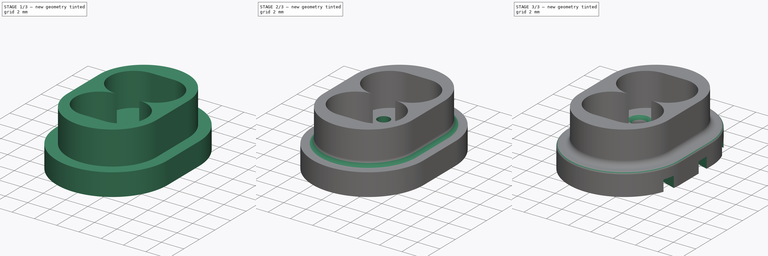
[diagram: build sequence overview — one tinted view per stage of 3, left to right]
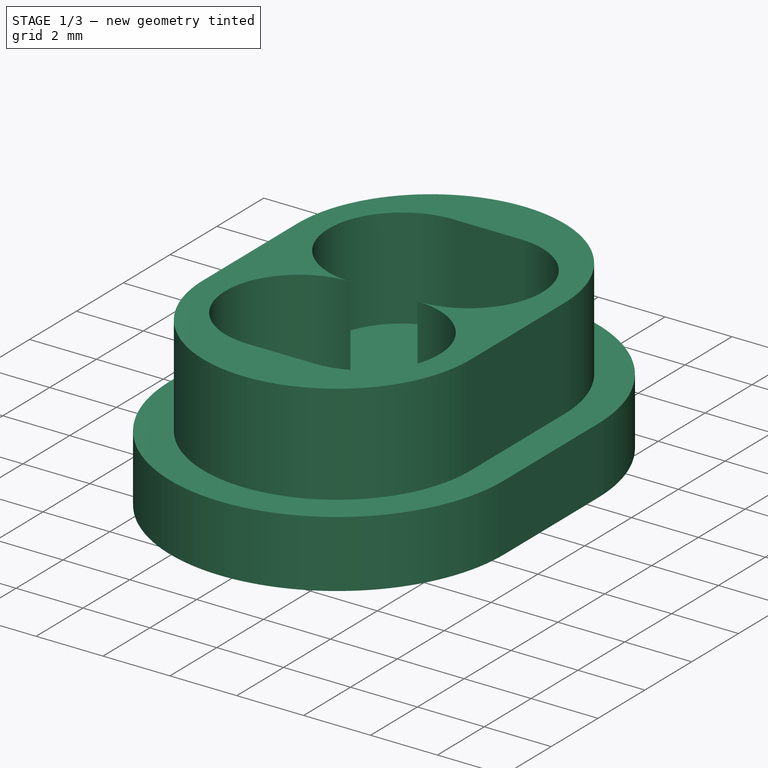
[diagram: stage 1 of 3 — iso view after this stage's code; geometry added in this stage tinted green]
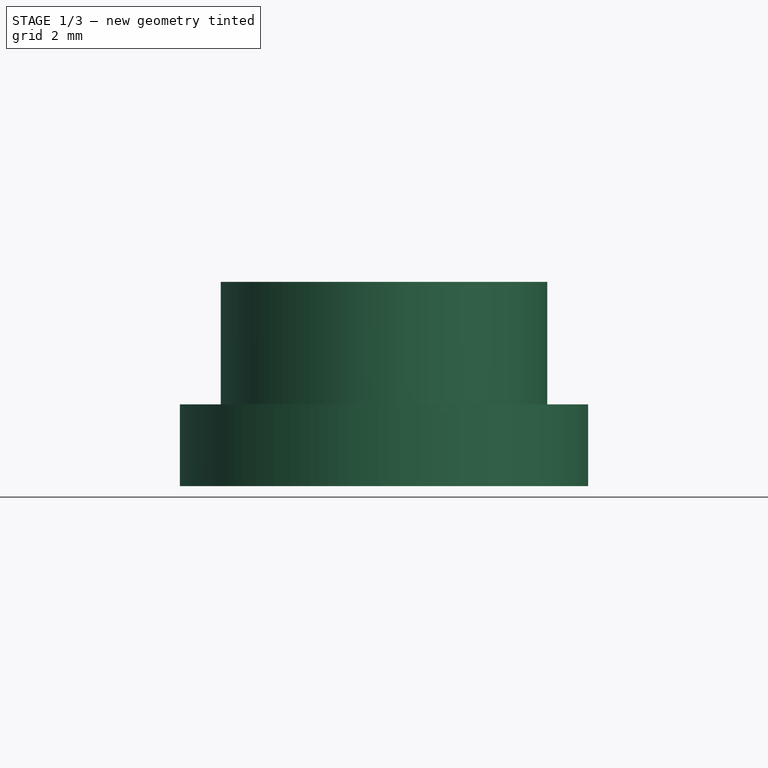
[diagram: stage 1 of 3 — front view after this stage's code; geometry added in this stage tinted green]
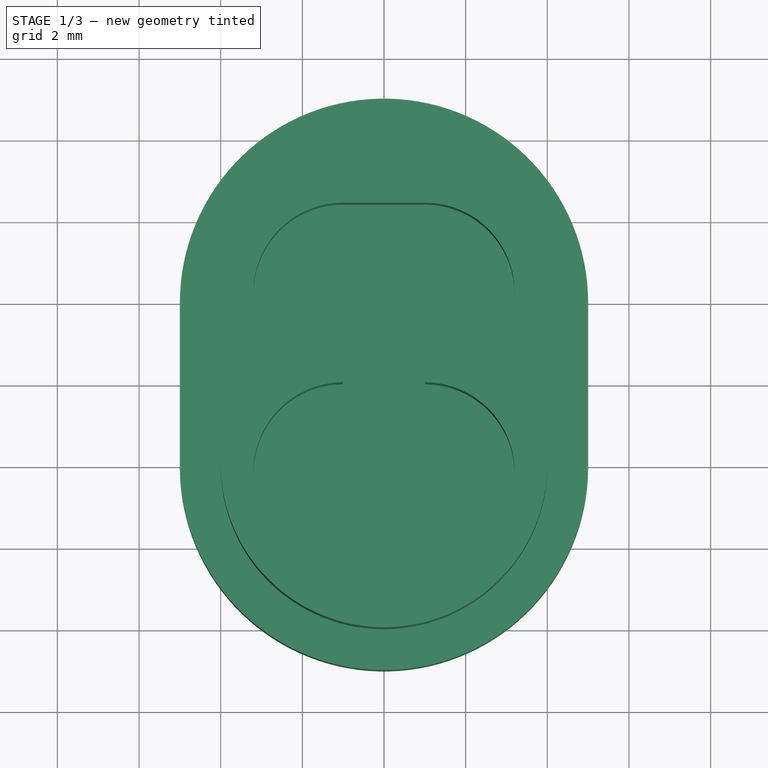
[diagram: stage 1 of 3 — top view after this stage's code; geometry added in this stage tinted green]
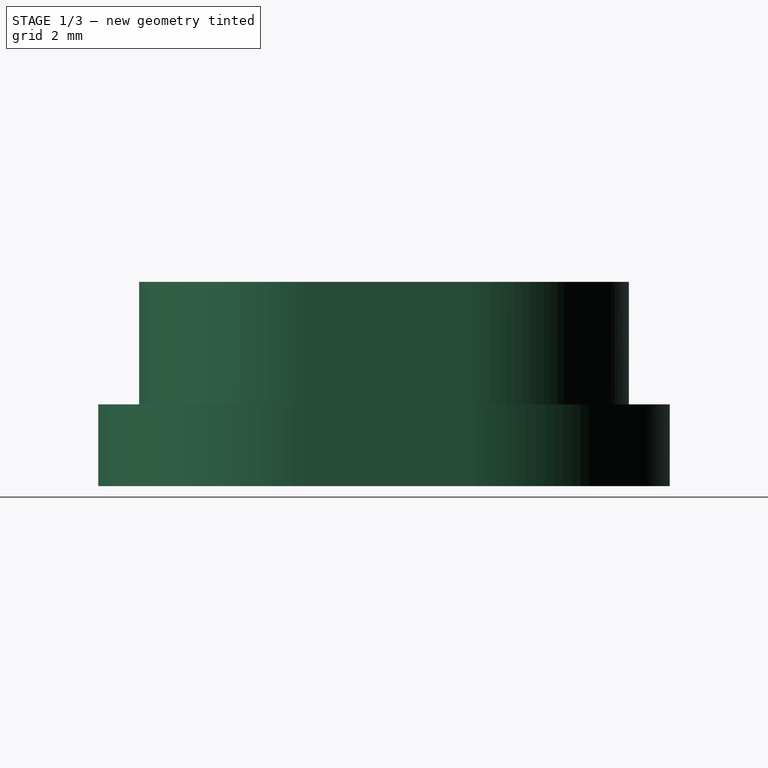
[diagram: stage 1 of 3 — right view after this stage's code; geometry added in this stage tinted green]
FCSTD DOCUMENT  (FreeCAD 0.21R33694 (Git))
Label: Bouchon x2 LDR V5
License: All rights reserved
LicenseURL: http://en.wikipedia.org/wiki/All_rights_reserved
objects: Sketcher::SketchObject×5, PartDesign::Pocket×3, PartDesign::Fillet×3, PartDesign::Pad×2, PartDesign::Body×1
note: 22 computed .brp shape members not serialized (recipe doc carries the construction recipe); baked Part::Feature solids carry a one-line shape summary decoded from their .brp

FEATURE [Sketcher::SketchObject] Sketch
  FullyConstrained = true
  MapMode = 5
  Support = -> [XY_Plane]
  sketch-geometry (4):
    g0: ArcOfCircle CenterX=-2e-16 CenterY=2 CenterZ=0 NormalX=0 NormalY=0 NormalZ=1 AngleXU=0 Radius=5 StartAngle=0 EndAngle=3.14159
    g1: ArcOfCircle CenterX=2e-16 CenterY=-2 CenterZ=0 NormalX=0 NormalY=0 NormalZ=1 AngleXU=0 Radius=5 StartAngle=3.14159 EndAngle=6.28319
    g2: LineSegment StartX=-5 StartY=2 StartZ=0 EndX=-5 EndY=-2 EndZ=0
    g3: LineSegment StartX=5 StartY=-2 StartZ=0 EndX=5 EndY=2 EndZ=0
  constraints (9):
    c: Tangent(g0,g2) = -1.5708
    c: Tangent(g2,g1) = -1.5708
    c: Tangent(g1,g3) = -1.5708
    c: Tangent(g3,g0) = -1.5708
    c: Equal(g0,g1)
    c: Vertical(g2)
    c: Diameter(g1) = 10
    c: Symmetric(g0,g1,g-1)
    c: DistanceY(g3,g3) = 4
FEATURE [PartDesign::Pad] Pad  label="fond"
  AllowMultiFace = false
  Direction = (0,0,1)
  Length = 2
  Length2 = 100
  Profile = -> Sketch
  ReferenceAxis = -> Sketch [N_Axis]
  Type = 0
FEATURE [Sketcher::SketchObject] Sketch001
  FullyConstrained = true
  MapMode = 5
  Placement = pos=(0,0,2) rot=(0,0,1;0rad)
  Support = -> [Pad]
  sketch-geometry (4):
    g0: ArcOfCircle CenterX=0 CenterY=2 CenterZ=0 NormalX=0 NormalY=0 NormalZ=1 AngleXU=0 Radius=4 StartAngle=1e-16 EndAngle=3.14159
    g1: ArcOfCircle CenterX=0 CenterY=-2 CenterZ=0 NormalX=0 NormalY=0 NormalZ=1 AngleXU=0 Radius=4 StartAngle=3.14159 EndAngle=6.28319
    g2: LineSegment StartX=-4 StartY=2 StartZ=0 EndX=-4 EndY=-2 EndZ=0
    g3: LineSegment StartX=4 StartY=-2 StartZ=0 EndX=4 EndY=2 EndZ=0
  constraints (9):
    c: Tangent(g0,g2) = -1.5708
    c: Tangent(g2,g1) = -1.5708
    c: Tangent(g1,g3) = -1.5708
    c: Tangent(g3,g0) = -1.5708
    c: Equal(g0,g1)
    c: PointOnObject(g0,g-2)
    c: Diameter(g0) = 8
    c: DistanceY(g3,g3) = 4
    c: Symmetric(g0,g1,g-1)
FEATURE [PartDesign::Pad] Pad001  label="Eplacement LDR"
  BaseFeature = -> Pad
  Direction = (0,0,1)
  Length = 3
  Length2 = 10
  Profile = -> Sketch001
  ReferenceAxis = -> Sketch001 [N_Axis]
  Refine = true
  Type = 0
FEATURE [Sketcher::SketchObject] Sketch002
  FullyConstrained = false
  MapMode = 5
  Placement = pos=(0,0,5) rot=(0,0,1;0rad)
  Support = -> [Pad001]
  sketch-geometry (6):
    g0: ArcOfCircle CenterX=-1 CenterY=2.2 CenterZ=0 NormalX=0 NormalY=0 NormalZ=1 AngleXU=0 Radius=2.2 StartAngle=1.5708 EndAngle=4.71239
    g1: ArcOfCircle CenterX=1 CenterY=2.2 CenterZ=0 NormalX=0 NormalY=0 NormalZ=1 AngleXU=0 Radius=2.2 StartAngle=4.71239 EndAngle=7.85398
    g2: LineSegment StartX=1 StartY=4.4 StartZ=0 EndX=-1 EndY=4.4 EndZ=0
    g3: ArcOfCircle CenterX=-1 CenterY=-2.2 CenterZ=0 NormalX=0 NormalY=0 NormalZ=1 AngleXU=0 Radius=2.2 StartAngle=1.5708 EndAngle=4.71239
    g4: ArcOfCircle CenterX=1 CenterY=-2.2 CenterZ=0 NormalX=0 NormalY=0 NormalZ=1 AngleXU=0 Radius=2.2 StartAngle=4.71239 EndAngle=7.85398
    g5: LineSegment StartX=-1 StartY=-4.4 StartZ=0 EndX=1 EndY=-4.4 EndZ=0
  constraints (12):
    c: Tangent(g1,g2) = -1.5708
    c: Tangent(g2,g0) = -1.5708
    c: Equal(g0,g1)
    c: Tangent(g3,g5) = -1.5708
    c: Tangent(g5,g4) = -1.5708
    c: Equal(g3,g4)
    c: Equal(g0,g3)
    c: Diameter(g0) = 4.4
    c: DistanceX(g2,g2) = 2
    c: DistanceX(g5,g5) = 2
    c: Symmetric(g1,g0,g-2)
    c: Symmetric(g4,g3,g-2)
FEATURE [PartDesign::Pocket] Pocket  label="LDR"
  BaseFeature = -> Pad001
  Direction = (0,0,-1)
  Length = 3
  Length2 = 5
  Profile = -> Sketch002
  ReferenceAxis = -> Sketch002 [N_Axis]
  Refine = true
  Type = 0
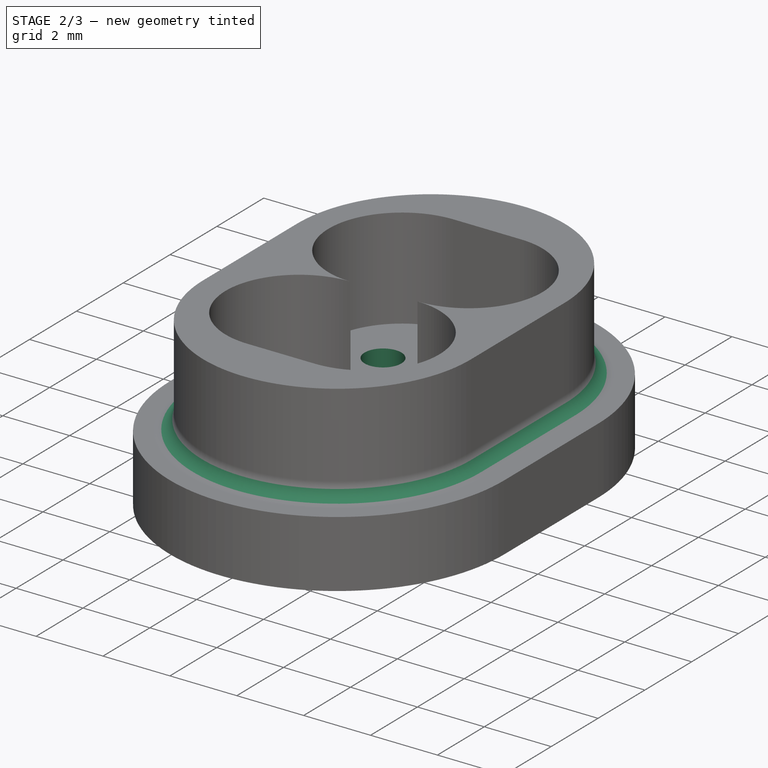
[diagram: stage 2 of 3 — iso view after this stage's code; geometry added in this stage tinted green]
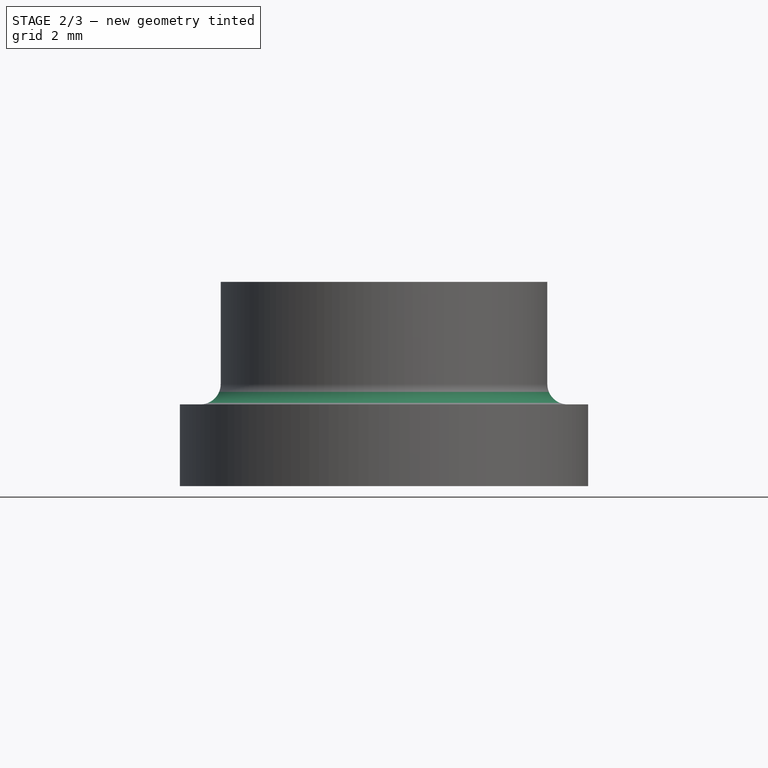
[diagram: stage 2 of 3 — front view after this stage's code; geometry added in this stage tinted green]
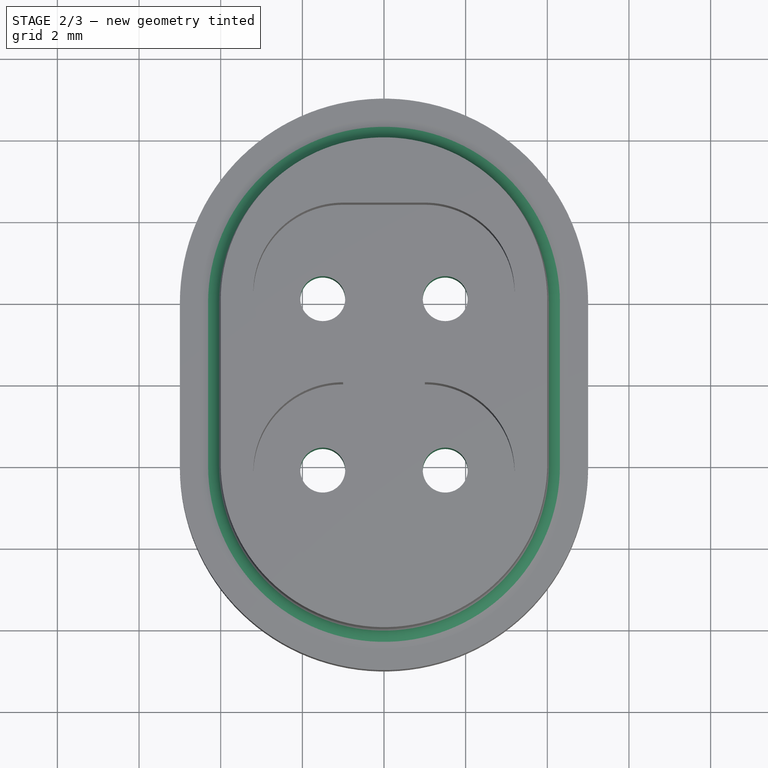
[diagram: stage 2 of 3 — top view after this stage's code; geometry added in this stage tinted green]
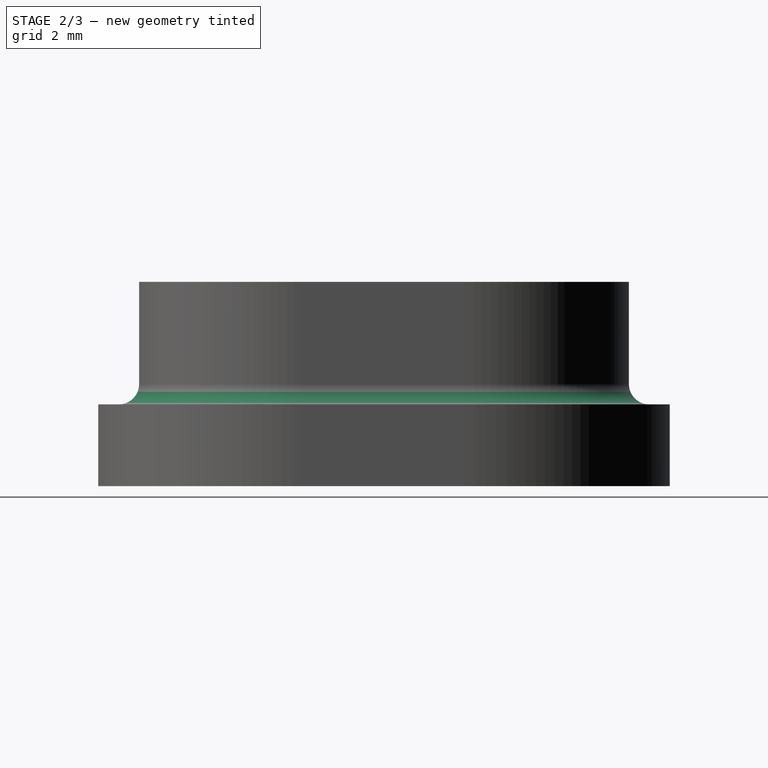
[diagram: stage 2 of 3 — right view after this stage's code; geometry added in this stage tinted green]
FEATURE [Sketcher::SketchObject] Sketch003
  FullyConstrained = true
  MapMode = 5
  Placement = pos=(0,0,2) rot=(0,0,1;0rad)
  Support = -> [Pocket]
  sketch-geometry (4):
    g0: Circle CenterX=-1.5 CenterY=2.1 CenterZ=0 NormalX=0 NormalY=0 NormalZ=1 AngleXU=0 Radius=0.55
    g1: Circle CenterX=1.5 CenterY=2.1 CenterZ=0 NormalX=0 NormalY=0 NormalZ=1 AngleXU=0 Radius=0.55
    g2: Circle CenterX=-1.5 CenterY=-2.1 CenterZ=0 NormalX=0 NormalY=0 NormalZ=1 AngleXU=0 Radius=0.55
    g3: Circle CenterX=1.5 CenterY=-2.1 CenterZ=0 NormalX=0 NormalY=0 NormalZ=1 AngleXU=0 Radius=0.55
  constraints (12):
    c: Equal(g0,g1)
    c: Equal(g0,g3)
    c: Equal(g0,g2)
    c: Diameter(g0) = 1.1
    c: DistanceX(g0,g-1) = 1.5
    c: DistanceX(g-1,g1) = 1.5
    c: DistanceX(g2,g-1) = 1.5
    c: DistanceX(g-1,g3) = 1.5
    c: DistanceY(g-1,g1) = 2.1
    c: DistanceY(g-1,g0) = 2.1
    c: DistanceY(g3,g-1) = 2.1
    c: DistanceY(g2,g-1) = 2.1
FEATURE [PartDesign::Pocket] Pocket001  label="trous LDR"
  BaseFeature = -> Pocket
  Direction = (0,0,-1)
  Length = 5
  Length2 = 5
  Profile = -> Sketch003
  ReferenceAxis = -> Sketch003 [N_Axis]
  Refine = true
  Type = 0
FEATURE [PartDesign::Fillet] Fillet  label="Congé Base"
  Base = -> Pocket001 [Edge18,Edge19,Edge17,Edge20]
  BaseFeature = -> Pocket001
  Radius = 0.5
  Refine = true
  SupportTransform = false
  UseAllEdges = false
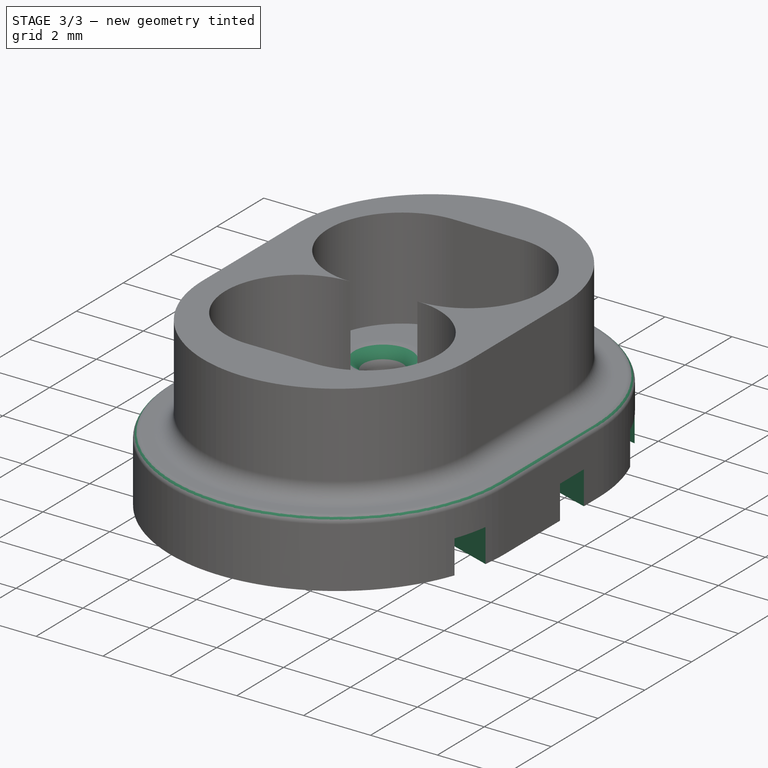
[diagram: stage 3 of 3 — iso view after this stage's code; geometry added in this stage tinted green]
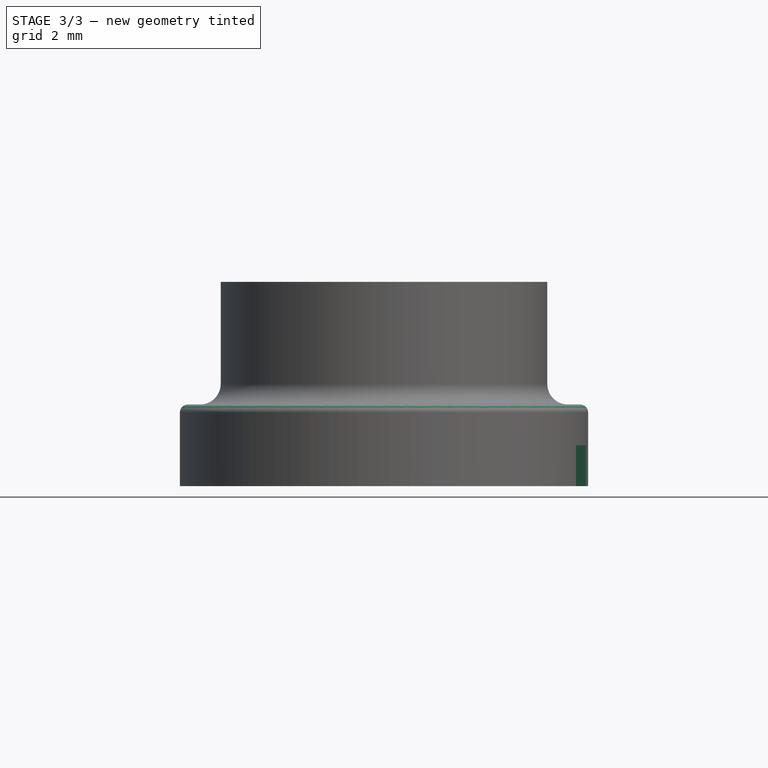
[diagram: stage 3 of 3 — front view after this stage's code; geometry added in this stage tinted green]
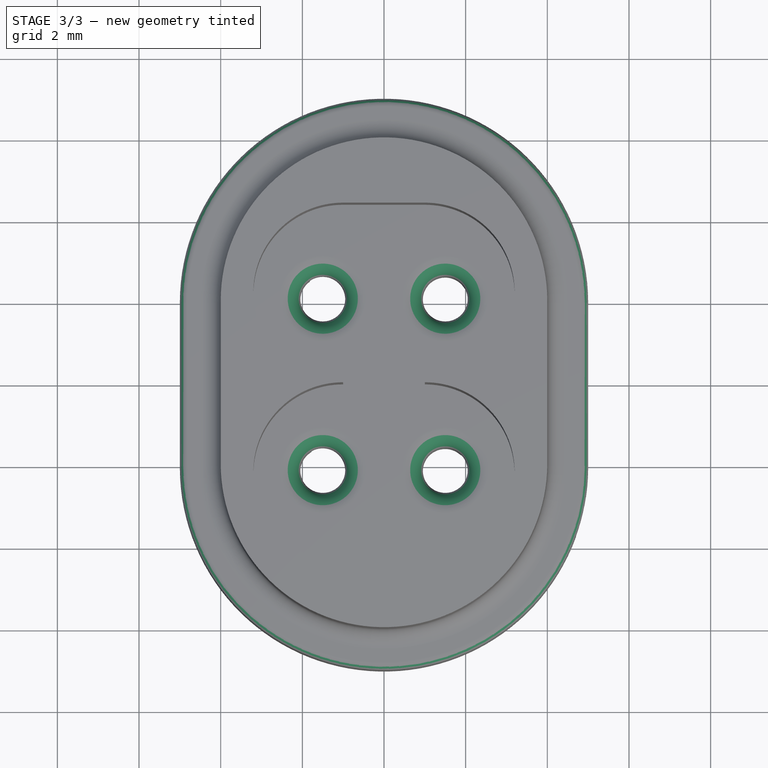
[diagram: stage 3 of 3 — top view after this stage's code; geometry added in this stage tinted green]
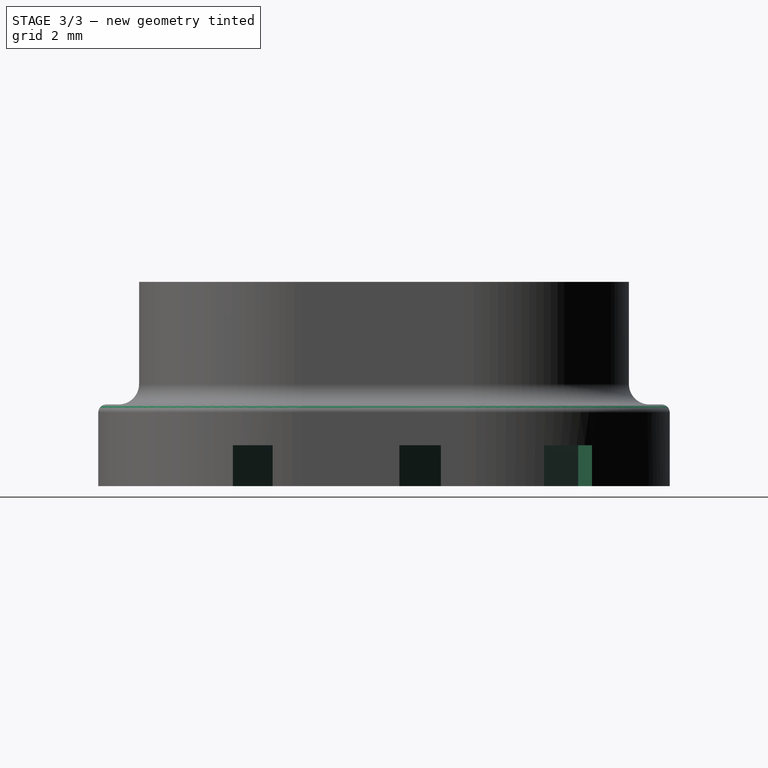
[diagram: stage 3 of 3 — right view after this stage's code; geometry added in this stage tinted green]
FEATURE [PartDesign::Fillet] Fillet001  label="Congé pattes LDR"
  Base = -> Fillet [Edge49,Edge45,Edge43,Edge47]
  BaseFeature = -> Fillet
  Radius = 0.5
  Refine = true
  SupportTransform = false
  UseAllEdges = false
FEATURE [Sketcher::SketchObject] Sketch004
  FullyConstrained = false
  MapMode = 5
  Placement = pos=(0,0,0) rot=(1,0,0;3.14159rad)
  Support = -> [Fillet001]
  sketch-geometry (16):
    g0: ArcOfCircle CenterX=-1.5989 CenterY=2.21186 CenterZ=0 NormalX=0 NormalY=0 NormalZ=1 AngleXU=0 Radius=0.5 StartAngle=0.591674 EndAngle=3.78481
    g1: LineSegment StartX=-1.99898 StartY=1.91197 StartZ=0 EndX=1.36693 EndY=-2.57854 EndZ=0
    g2: LineSegment StartX=1.60334 StartY=-1.65703 StartZ=0 EndX=-1.18389 EndY=2.49074 EndZ=0
    g3: ArcOfCircle CenterX=1.50823 CenterY=2.10335 CenterZ=0 NormalX=0 NormalY=0 NormalZ=1 AngleXU=0 Radius=0.5 StartAngle=1.89432 EndAngle=5.03591
    g4: ArcOfCircle CenterX=5.68807 CenterY=3.50488 CenterZ=0 NormalX=0 NormalY=0 NormalZ=1 AngleXU=0 Radius=0.5 StartAngle=5.03591 EndAngle=8.17751
    g5: LineSegment StartX=1.66718 StartY=1.62929 StartZ=0 EndX=5.84703 EndY=3.03082 EndZ=0
    g6: LineSegment StartX=5.52912 StartY=3.97894 StartZ=0 EndX=1.34927 EndY=2.57741 EndZ=0
    g7: ArcOfCircle CenterX=5.8147 CenterY=-0.602795 CenterZ=0 NormalX=0 NormalY=0 NormalZ=1 AngleXU=0 Radius=0.5 StartAngle=5.0275 EndAngle=8.2147
    g8: LineSegment StartX=1.36693 StartY=-2.57854 StartZ=0 EndX=5.96966 EndY=-1.07818 EndZ=0
    g9: LineSegment StartX=5.63823 StartY=-0.134973 StartZ=0 EndX=1.60334 EndY=-1.65703 EndZ=0
    g10: ArcOfCircle CenterX=-1.53386 CenterY=-2.0464 CenterZ=0 NormalX=0 NormalY=0 NormalZ=1 AngleXU=0 Radius=0.5 StartAngle=0.494593 EndAngle=3.66009
    g11: LineSegment StartX=-1.96815 StartY=-2.29419 StartZ=0 EndX=0.10206 EndY=-5.92252 EndZ=0
    g12: LineSegment StartX=0.494352 StartY=-4.75386 StartZ=0 EndX=-1.09378 EndY=-1.80906 EndZ=0
    g13: ArcOfCircle CenterX=4.88748 CenterY=-4.37499 CenterZ=0 NormalX=0 NormalY=0 NormalZ=1 AngleXU=0 Radius=0.5 StartAngle=4.92558 EndAngle=8.05365
    g14: LineSegment StartX=0.10206 StartY=-5.92252 StartZ=0 EndX=4.99327 EndY=-4.86367 EndZ=0
    g15: LineSegment StartX=4.78831 StartY=-3.88493 StartZ=0 EndX=0.494352 EndY=-4.75386 EndZ=0
  constraints (22):
    c: Tangent(g0,g1) = -1.5708
    c: Tangent(g2,g0) = -1.5708
    c: Diameter(g0) = 1
    c: Tangent(g3,g5) = -1.5708
    c: Tangent(g5,g4) = -1.5708
    c: Tangent(g4,g6) = -1.5708
    c: Tangent(g6,g3) = -1.5708
    c: Equal(g3,g4)
    c: Diameter(g4) = 1
    c: Tangent(g8,g7) = -1.5708
    c: Tangent(g7,g9) = -1.5708
    c: Diameter(g7) = 1
    c: Tangent(g10,g11) = -1.5708
    c: Tangent(g12,g10) = -1.5708
    c: Tangent(g14,g13) = -1.5708
    c: Tangent(g13,g15) = -1.5708
    c: Diameter(g13) = 1
    c: Coincident(g2,g9)
    c: Coincident(g1,g8)
    c: Coincident(g12,g15)
    c: Coincident(g11,g14)
    c: Diameter(g10) = 1
FEATURE [PartDesign::Pocket] Pocket002  label="Passage des pattes"
  BaseFeature = -> Fillet001
  Direction = (0,0,1)
  Length = 1
  Length2 = 5
  Profile = -> Sketch004
  ReferenceAxis = -> Sketch004 [N_Axis]
  Refine = true
  Type = 0
FEATURE [PartDesign::Fillet] Fillet002  label="Congé dessus"
  Base = -> Pocket002 [Face36]
  BaseFeature = -> Pocket002
  Radius = 0.2
  Refine = true
  SupportTransform = false
  UseAllEdges = false
FEATURE [PartDesign::Body] Body
  Group = -> [Sketch,Pad,Sketch001,Pad001,Sketch002,Pocket,Sketch003,Pocket001,Fillet,Fillet001,Sketch004,Pocket002,Fillet002]
  Origin = -> Origin
  Tip = -> Fillet002
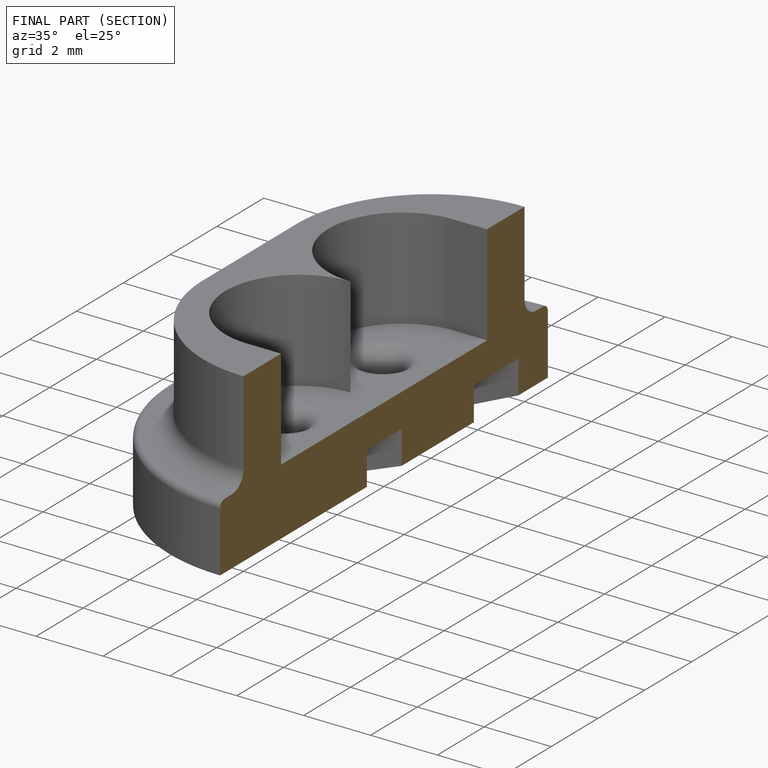
[diagram: finished part — half-section view (interior)]
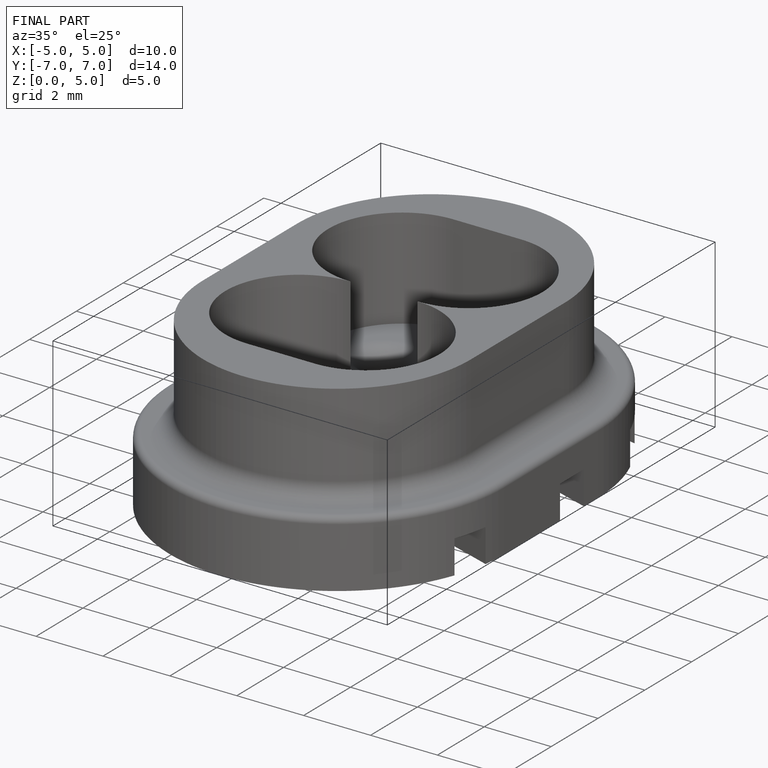
[diagram: finished part — iso view with bounding-box wireframe]
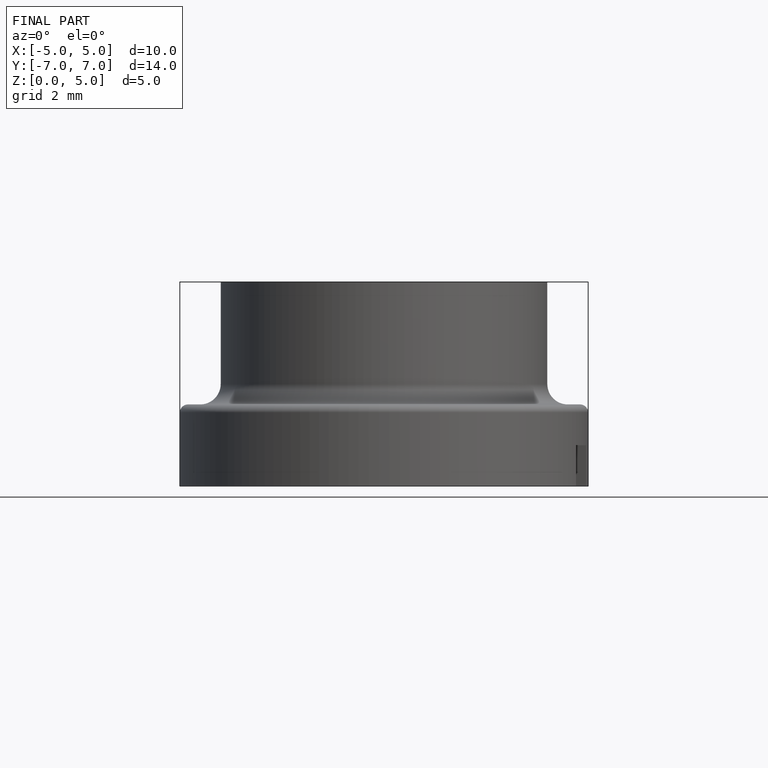
[diagram: finished part — front view with bounding-box wireframe]
